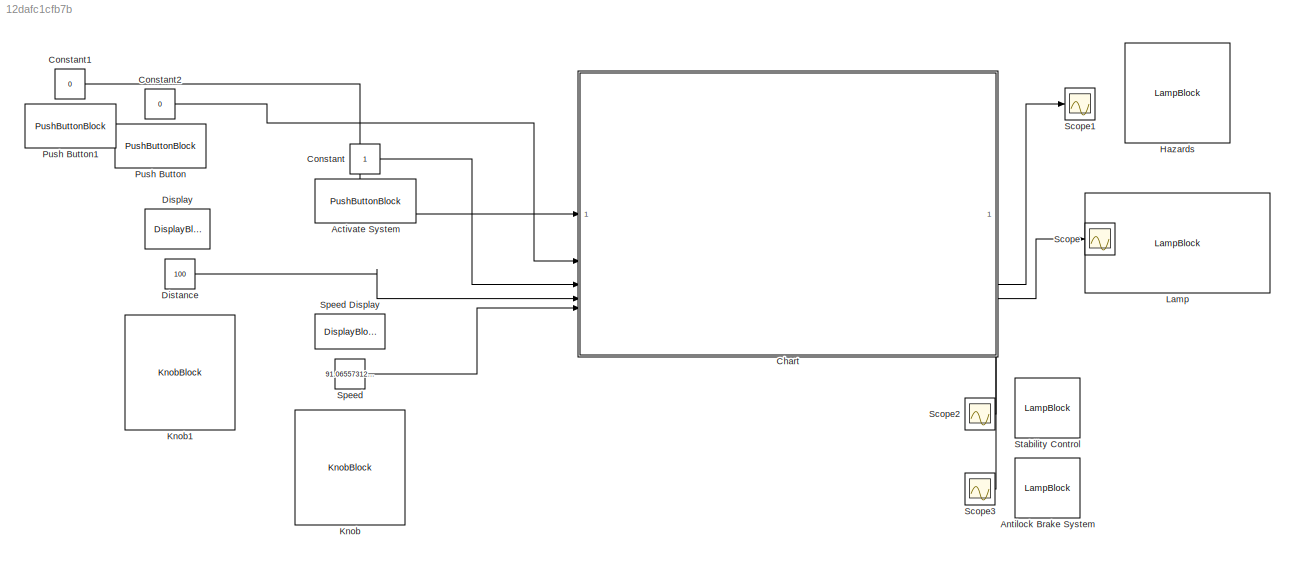
MODEL slx_12dafc1cfb7b
KIND model
CONFIG AbsTol = auto
CONFIG EnableMultiTasking = off
CONFIG FixedStep = auto
CONFIG MaxStep = auto
CONFIG MinStep = auto
CONFIG RelTol = 1e-3
CONFIG SampleTimeConstraint = Unconstrained
CONFIG SolverName = VariableStepAuto
CONFIG StartTime = 0.0
CONFIG StopTime = inf
BLOCK [PushButtonBlock] Activate System
  ButtonType = Latch
  OffValue = 0.000000
BLOCK [LampBlock] Antilock Brake System
  Icon = AntilockBrakeSystem
  LabelPosition = Hide
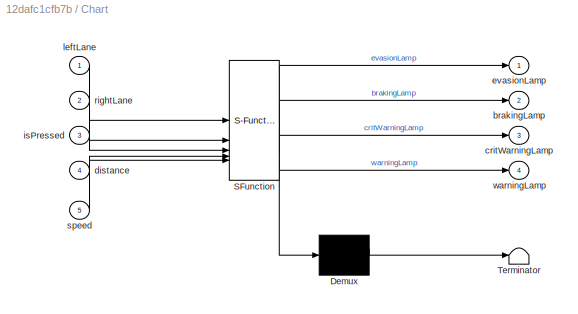
BLOCK [SubSystem] Chart
  ErrorFcn = Stateflow.Translate.translate
  PermitHierarchicalResolution = ExplicitOnly
  PortSchema = {"entries":[{"content":{"sides":[{"content":{"connectorIds":["In1","In2","In3","In4","In5"]},"type":"ConnectorPlacement.EquallySpacedRectSide","uuid":"bb82dbc6-565a-48e2-a270-6c5f1a85c48d"},{"content":{"connectorIds":["Out3","Out4"],"side":"RIGHT"},"type":"ConnectorPlacement.EquallySpacedRectSide","uuid":"af29e780-d849-487b-8c17-f69bc4a7dc2c"},{"content":{"side":"TOP"},"type":"ConnectorPlacement.E...<+410ch>
  SFBlockType = Chart
  TreatAsAtomicUnit = on
BLOCK [Demux] Chart/ Demux 
  Outputs = 1
BLOCK [S-Function] Chart/ SFunction 
  EnableBusSupport = on
  FunctionName = sf_sfun
  PortCounts = [5 5]
  SFcnIsStateOwnerBlock = off
  SFunctionDeploymentMode = off
  Tag = Stateflow S-Function 3
BLOCK [Terminator] Chart/ Terminator 
BLOCK [Outport] Chart/brakingLamp
  Port = 2
BLOCK [Outport] Chart/critWarningLamp
  Port = 3
BLOCK [Inport] Chart/distance
  Port = 4
BLOCK [Outport] Chart/evasionLamp
BLOCK [Inport] Chart/isPressed
  Port = 3
BLOCK [Inport] Chart/leftLane
BLOCK [Inport] Chart/rightLane
  Port = 2
BLOCK [Inport] Chart/speed
  Port = 5
BLOCK [Outport] Chart/warningLamp
  Port = 4
BLOCK [Constant] Constant
BLOCK [Constant] Constant1
  Value = 0
BLOCK [Constant] Constant2
  Value = 0
BLOCK [DisplayBlock] Display
  LabelPosition = Hide
  Transparency = 1
BLOCK [Constant] Distance
  Value = 100
BLOCK [LampBlock] Hazards
  Icon = Hazards
  LabelPosition = Hide
BLOCK [KnobBlock] Knob
  ScaleMax = 180
BLOCK [KnobBlock] Knob1
  NameLocation = top
BLOCK [LampBlock] Lamp
  LabelPosition = Hide
BLOCK [PushButtonBlock] Push Button
  ButtonType = Latch
  OffValue = 0.000000
BLOCK [PushButtonBlock] Push Button1
  ButtonType = Latch
  OffValue = 0.000000
BLOCK [Scope] Scope
  Floating = off
  NumInputPorts = 1
  ScopeSpecificationString = Simulink.scopes.TimeScopeBlockCfg('CurrentConfiguration', extmgr.ConfigurationSet(extmgr.Configuration('Core','General UI',true),extmgr.Configuration('Core','Source UI',true),extmgr.Configuration('Sources','WiredSimulink',true),extmgr.Configuration('Visuals','Time Domain',true),extmgr.Configuration('Tools','Plot Navigation',true),extmgr.Configuration('Tools','Measurements',true)),'Version','2023a'...<+1ch>
BLOCK [Scope] Scope1
  Floating = off
  NumInputPorts = 1
  ScopeSpecificationString = Simulink.scopes.TimeScopeBlockCfg('CurrentConfiguration', extmgr.ConfigurationSet(extmgr.Configuration('Core','General UI',true),extmgr.Configuration('Core','Source UI',true),extmgr.Configuration('Sources','WiredSimulink',true,'DataLoggingVariableName','ScopeData1'),extmgr.Configuration('Visuals','Time Domain',true,'SerializedDisplays',{struct('MinYLimReal','-0.125','MaxYLimReal','1.125','YLabelRe...<+1368ch>
BLOCK [Scope] Scope2
  Floating = off
  NumInputPorts = 1
  ScopeSpecificationString = Simulink.scopes.TimeScopeBlockCfg('CurrentConfiguration', extmgr.ConfigurationSet(extmgr.Configuration('Core','General UI',true),extmgr.Configuration('Core','Source UI',true),extmgr.Configuration('Sources','WiredSimulink',true,'DataLoggingVariableName','ScopeData1'),extmgr.Configuration('Visuals','Time Domain',true),extmgr.Configuration('Tools','Plot Navigation',true),extmgr.Configuration('Tools',...<+40ch>
BLOCK [Scope] Scope3
  Floating = off
  NumInputPorts = 1
  ScopeSpecificationString = Simulink.scopes.TimeScopeBlockCfg('CurrentConfiguration', extmgr.ConfigurationSet(extmgr.Configuration('Core','General UI',true),extmgr.Configuration('Core','Source UI',true),extmgr.Configuration('Sources','WiredSimulink',true,'DataLoggingVariableName','ScopeData2'),extmgr.Configuration('Visuals','Time Domain',true),extmgr.Configuration('Tools','Plot Navigation',true),extmgr.Configuration('Tools',...<+40ch>
BLOCK [Constant] Speed
  Value = 91.06557312011719
BLOCK [DisplayBlock] Speed Display
  LabelPosition = Hide
  Transparency = 1
BLOCK [LampBlock] Stability Control
  Icon = StabilityControl
  LabelPosition = Hide
LINE Chart:1 -> Scope2:1
LINE Chart:2 -> Scope3:1
LINE Chart:3 -> Scope1:1
LINE Chart:4 -> Scope:1
LINE Constant1:1 -> Chart:1
LINE Constant2:1 -> Chart:2
LINE Constant:1 -> Chart:3
LINE Distance:1 -> Chart:4
LINE Speed:1 -> Chart:5
CHART Chart states=10 transitions=13
  STATE_LABEL 'OffState\n\n'
  STATE_LABEL 'Standby\n\nwarningLamp = 0;\ncritWarningLamp = 0;\nbreakingDist = (speed/10)*(speed/10);\n'
  STATE_LABEL 'Warning\n\nwarningLamp = 1;\nbreakingDist = (speed/10)*(speed/10);\nemergencyDist = breakingDist/2;\nbrakingLamp = 0;\nevasionLamp = 0;'
  STATE_LABEL 'Decision\n\ncritWarningLamp = 1;'
  STATE_LABEL 'DecisionTree'
  STATE_LABEL 'Start\nbrakingLamp = 0;\nevasionLamp = 0;\n'
  STATE_LABEL 'Brake\nbrakingLamp = 1;'
  STATE_LABEL 'Evasion\nevasionLamp = 1;\n'
  STATE_LABEL '[(leftLane + rightLane) == 0]'
  STATE_LABEL '[leftLane == 1 || rightLane == 1]'
  STATE_LABEL 'DecisionTree'
  STATE_LABEL 'Start\nbrakingLamp = 0;\nevasionLamp = 0;\n'
  STATE_LABEL 'Brake\nbrakingLamp = 1;'
  STATE_LABEL 'Evasion\nevasionLamp = 1;\n'
  STATE_LABEL '[(leftLane + rightLane) == 0]'
  STATE_LABEL '[leftLane == 1 || rightLane == 1]'
  STATE_LABEL 'Start\nbrakingLamp = 0;\nevasionLamp = 0;\n'
  STATE_LABEL 'Brake\nbrakingLamp = 1;'
  STATE_LABEL 'Evasion\nevasionLamp = 1;\n'
  STATE_LABEL 'Control'
  STATE_LABEL 'Completed'
CHART  states=0 transitions=0
